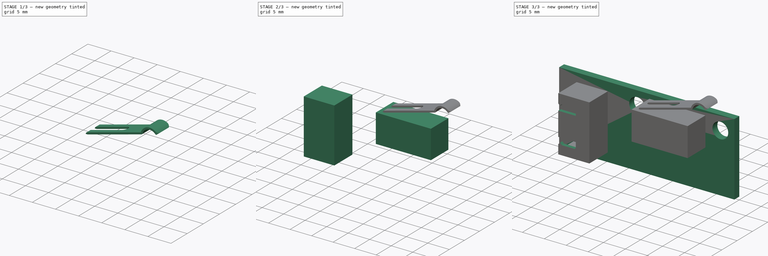
[diagram: build sequence overview — one tinted view per stage of 3, left to right]
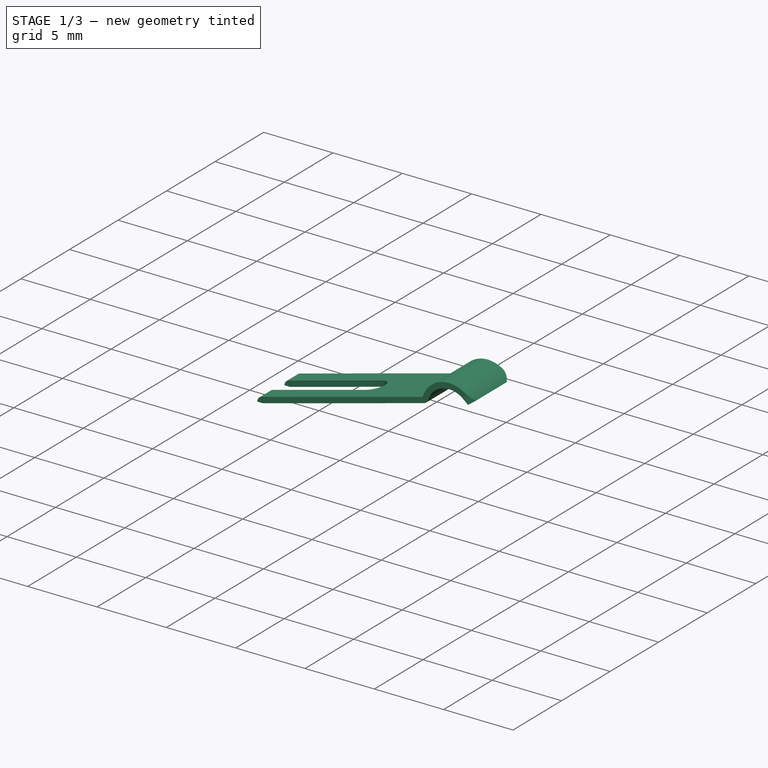
[diagram: stage 1 of 3 — iso view after this stage's code; geometry added in this stage tinted green]
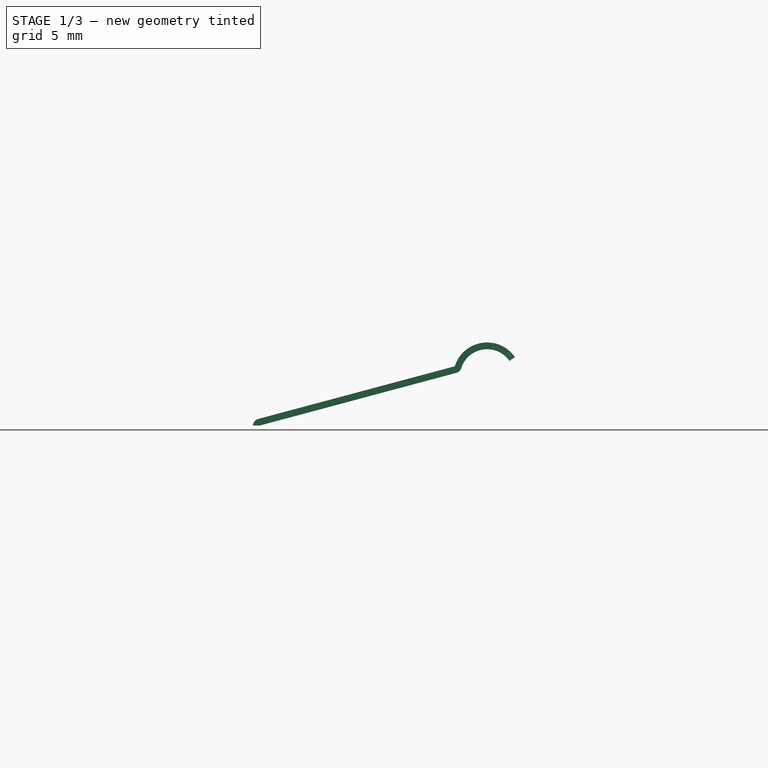
[diagram: stage 1 of 3 — front view after this stage's code; geometry added in this stage tinted green]
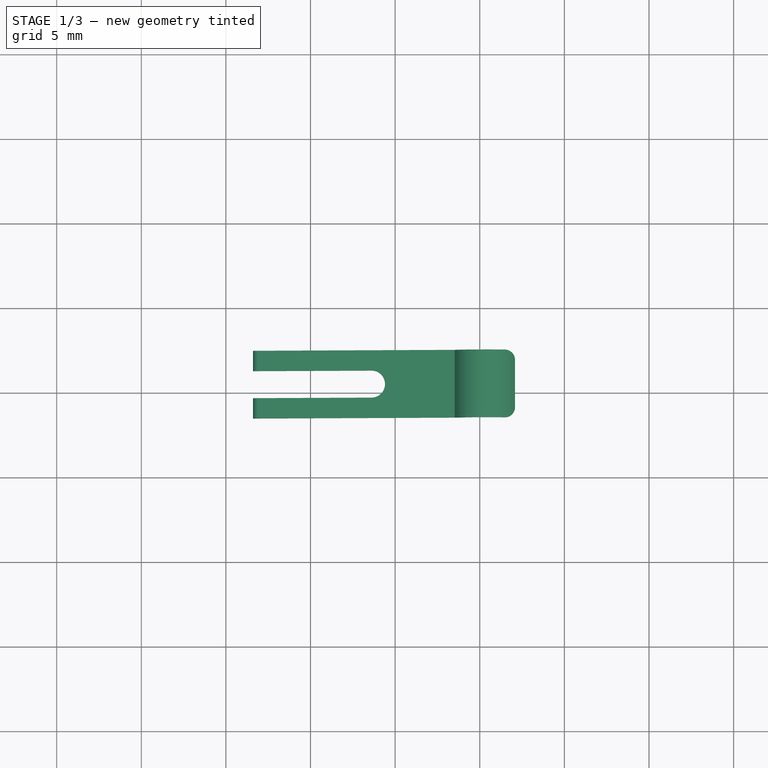
[diagram: stage 1 of 3 — top view after this stage's code; geometry added in this stage tinted green]
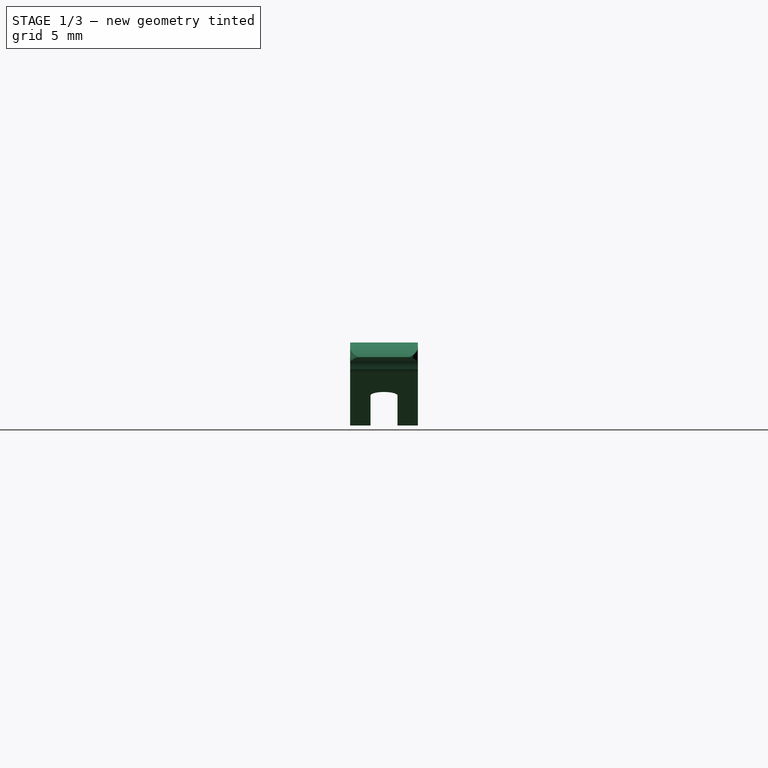
[diagram: stage 1 of 3 — right view after this stage's code; geometry added in this stage tinted green]
FCSTD DOCUMENT  (FreeCAD 0.18R4 (GitTag))
Label: Endstop
License: All rights reserved
LicenseURL: http://en.wikipedia.org/wiki/All_rights_reserved
objects: Sketcher::SketchObject×7, PartDesign::Pad×4, PartDesign::Body×4, PartDesign::ShapeBinder×4, PartDesign::Pocket×3
note: 29 computed .brp shape members not serialized (recipe doc carries the construction recipe); baked Part::Feature solids carry a one-line shape summary decoded from their .brp

FEATURE [PartDesign::Body] Body002  label="Switch"
  Group = -> [CopyPad001,Sketch004,Pad002]
  Origin = -> Origin002
  Tip = -> Pad002
FEATURE [PartDesign::ShapeBinder] CopyPad002
  Placement = pos=(0,-5.8,-1.2517e-07) rot=(0,0,1;0rad)
  TraceSupport = false
FEATURE [Sketcher::SketchObject] Sketch005
  MapMode = 5
  Placement = pos=(0,-7.4,-1.72853e-07) rot=(1,0,0;1.5708rad)
  Support = -> [CopyPad002]
  sketch-geometry (9):
    g0: LineSegment [constr] StartX=20.6 StartY=15.6 StartZ=0 EndX=33.4 EndY=15.6 EndZ=0
    g1: ArcOfCircle CenterX=22 CenterY=15.6 CenterZ=0 NormalX=0 NormalY=0 NormalZ=1 AngleXU=0 Radius=0.4 StartAngle=1.8326 EndAngle=3.14159
    g2: LineSegment StartX=21.8965 StartY=15.9864 StartZ=0 EndX=33.522 EndY=19.1014 EndZ=0
    g3: ArcOfCircle CenterX=35.4323 CenterY=18.5093 CenterZ=0 NormalX=0 NormalY=0 NormalZ=1 AngleXU=0 Radius=2 StartAngle=0.601485 EndAngle=2.84102
    g4: ArcOfCircle CenterX=35.4323 CenterY=18.5093 CenterZ=0 NormalX=0 NormalY=0 NormalZ=1 AngleXU=0 Radius=1.6 StartAngle=0.601485 EndAngle=2.84102
    g5: ArcOfCircle CenterX=33.522 CenterY=19.1014 CenterZ=0 NormalX=0 NormalY=0 NormalZ=1 AngleXU=0 Radius=0.4 StartAngle=4.97419 EndAngle=5.98262
    g6: LineSegment StartX=33.6255 StartY=18.715 StartZ=0 EndX=22 EndY=15.6 EndZ=0
    g7: LineSegment StartX=22 StartY=15.6 StartZ=0 EndX=21.6 EndY=15.6 EndZ=0
    g8: LineSegment StartX=37.0813 StartY=19.641 StartZ=0 EndX=36.7515 EndY=19.4147 EndZ=0
  constraints (26):
    c: Horizontal(g0)
    c: DistanceX(g-1,g0) = 20.6
    c: DistanceY(g-1,g0) = 15.6
    c: Distance(g0) = 12.8
    c: PointOnObject(g1,g0)
    c: Coincident(g3,g2)
    c: Coincident(g4,g3)
    c: Coincident(g5,g2)
    c: Coincident(g7,g1)
    c: Tangent(g2,g1) = 1.5708
    c: Tangent(g5,g4) = 1.5708
    c: PointOnObject(g1,g0)
    c: Coincident(g6,g7)
    c: Parallel(g2,g6)
    c: Tangent(g5,g6) = 1.5708
    c: Coincident(g1,g6)
    c: Distance(g1,g3) = 16
    c: Angle(g0,g6) = 0.261799
    c: Distance(g0,g1) = 1
    c: PointOnObject(g3,g6)
    c: Coincident(g8,g3)
    c: Coincident(g8,g4)
    c: PointOnObject(g3,g8)
    c: Distance(g2,g5) = 0.4
    c: Distance(g2,g3) = 3.6
    c: Diameter(g4) = 3.2
FEATURE [PartDesign::Pad] Pad003
  Length = 5.8
  Length2 = 100
  Placement = pos=(0,-5.8,-1.2517e-07) rot=(0,0,1;0rad)
  Profile = -> Sketch005
  Reversed = true
  Type = 0
FEATURE [PartDesign::ShapeBinder] CopyPad002001
  Placement = pos=(0,-1.6,1.1e-15) rot=(0,0,1;0rad)
  TraceSupport = false
FEATURE [Sketcher::SketchObject] Sketch006
  ExternalGeometry = -> [Pad003]
  MapMode = 5
  Placement = pos=(0,-1.6,15.6) rot=(1,0,0;0rad)
  Support = -> [CopyPad002001]
  sketch-geometry (15):
    g0: LineSegment StartX=21.6 StartY=-4.9 StartZ=0 EndX=36.4813 EndY=-4.9 EndZ=0
    g1: LineSegment StartX=20.4 StartY=-5.8 StartZ=0 EndX=20.4 EndY=0 EndZ=0
    g2: LineSegment StartX=20.4 StartY=0 StartZ=0 EndX=37.0813 EndY=8.9e-15 EndZ=0
    g3: LineSegment StartX=36.4813 StartY=-0.9 StartZ=0 EndX=21.6 EndY=-0.9 EndZ=0
    g4: LineSegment StartX=21.6 StartY=-0.9 StartZ=0 EndX=21.6 EndY=-2.1 EndZ=0
    g5: LineSegment StartX=21.6 StartY=-2.1 StartZ=0 EndX=28.6 EndY=-2.1 EndZ=0
    g6: LineSegment StartX=21.6 StartY=-4.9 StartZ=0 EndX=21.6 EndY=-3.7 EndZ=0
    g7: LineSegment StartX=21.6 StartY=-3.7 StartZ=0 EndX=28.6 EndY=-3.7 EndZ=0
    g8: LineSegment StartX=37.0813 StartY=-5.8 StartZ=0 EndX=21.6 EndY=-5.8 EndZ=0
    g9: LineSegment StartX=21.6 StartY=-5.8 StartZ=0 EndX=20.4 EndY=-5.8 EndZ=0
    g10: ArcOfCircle CenterX=28.6 CenterY=-2.9 CenterZ=0 NormalX=0 NormalY=0 NormalZ=1 AngleXU=0 Radius=0.8 StartAngle=4.71239 EndAngle=7.85398
    g11: ArcOfCircle CenterX=36.4813 CenterY=-4.3 CenterZ=0 NormalX=0 NormalY=0 NormalZ=1 AngleXU=0 Radius=0.6 StartAngle=4.71239 EndAngle=6.28319
    g12: ArcOfCircle CenterX=36.4813 CenterY=-1.5 CenterZ=0 NormalX=0 NormalY=0 NormalZ=1 AngleXU=0 Radius=0.6 StartAngle=0 EndAngle=1.5708
    g13: LineSegment StartX=37.0813 StartY=-1.5 StartZ=0 EndX=37.0813 EndY=8.9e-15 EndZ=0
    g14: LineSegment StartX=37.0813 StartY=-4.3 StartZ=0 EndX=37.0813 EndY=-5.8 EndZ=0
  constraints (45):
    c: PointOnObject(g0,g-3)
    c: Horizontal(g0)
    c: PointOnObject(g1,g-1)
    c: Vertical(g1)
    c: Coincident(g1,g2)
    c: Coincident(g2,g-4)
    c: PointOnObject(g3,g-3)
    c: Horizontal(g3)
    c: Coincident(g3,g4)
    c: PointOnObject(g4,g-3)
    c: Coincident(g4,g5)
    c: Horizontal(g5)
    c: Coincident(g0,g6)
    c: PointOnObject(g6,g-3)
    c: Coincident(g6,g7)
    c: Horizontal(g7)
    c: Equal(g4,g6)
    c: Vertical(g7,g5)
    c: Coincident(g8,g-3)
    c: Coincident(g9,g8)
    c: Coincident(g9,g1)
    c: Horizontal(g9)
    c: Equal(g9,g6)
    c: Coincident(g10,g5)
    c: Coincident(g10,g7)
    c: Distance(g3,g0) = 4
    c: Distance(g4) = 1.2
    c: Distance(g7) = 7
    c: Vertical(g10,g5)
    c: Coincident(g11,g0)
    c: PointOnObject(g11,g-4)
    c: Coincident(g12,g3)
    c: PointOnObject(g12,g-4)
    c: Vertical(g3,g12)
    c: Vertical(g12,g11)
    c: Vertical(g11,g0)
    c: Horizontal(g12,g12)
    c: Horizontal(g11,g11)
    c: Coincident(g13,g12)
    c: Coincident(g13,g2)
    c: Coincident(g14,g11)
    c: Coincident(g14,g8)
    c: Equal(g13,g14)
    c: Coincident(g8,g-4)
    c: Radius(g11) = 0.6
FEATURE [PartDesign::Pocket] Pocket002
  BaseFeature = -> Pad003
  Length = 5
  Length2 = 100
  Placement = pos=(0,-5.8,-1.2517e-07) rot=(0,0,1;0rad)
  Profile = -> Sketch006
  Reversed = true
  Type = 1
FEATURE [PartDesign::Body] Body003  label="Lever"
  Group = -> [CopyPad002,Sketch005,Pad003,CopyPad002001,Sketch006,Pocket002]
  Origin = -> Origin003
  Tip = -> Pocket002
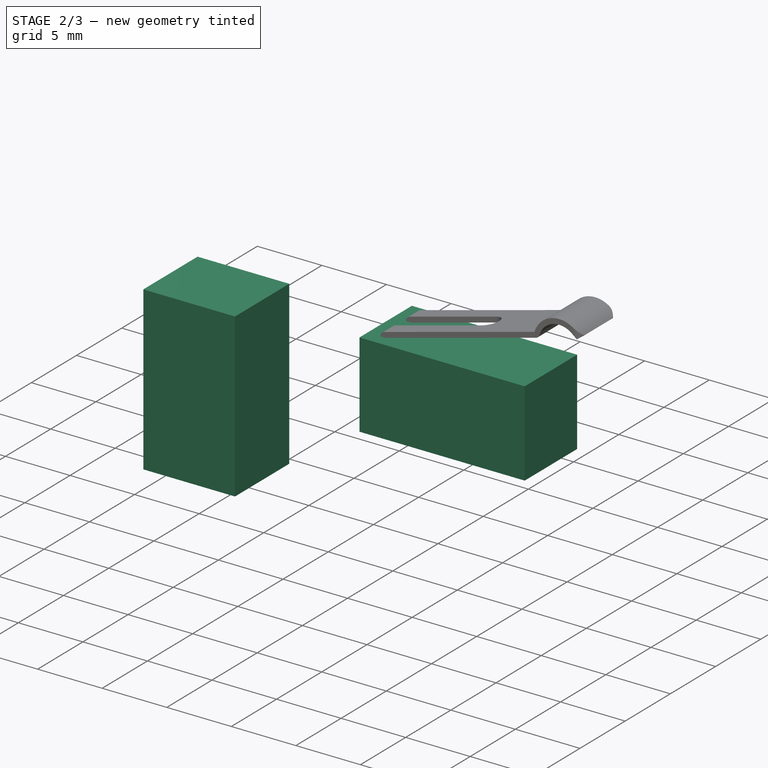
[diagram: stage 2 of 3 — iso view after this stage's code; geometry added in this stage tinted green]
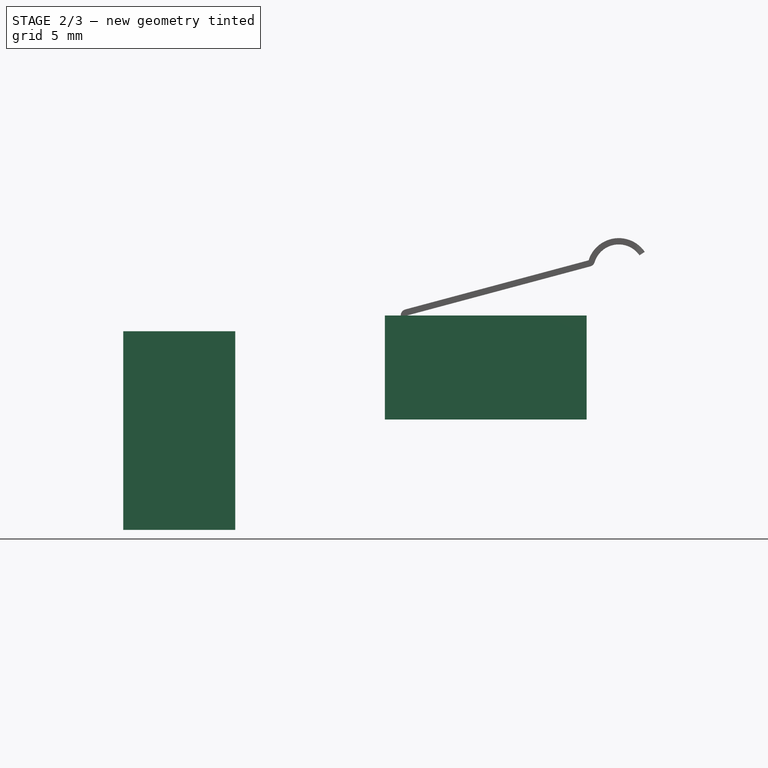
[diagram: stage 2 of 3 — front view after this stage's code; geometry added in this stage tinted green]
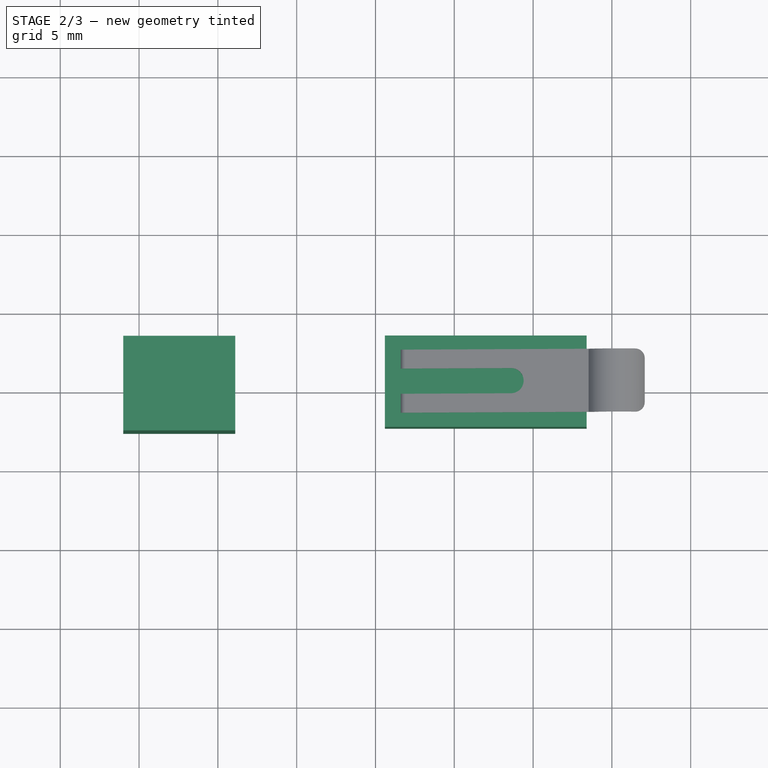
[diagram: stage 2 of 3 — top view after this stage's code; geometry added in this stage tinted green]
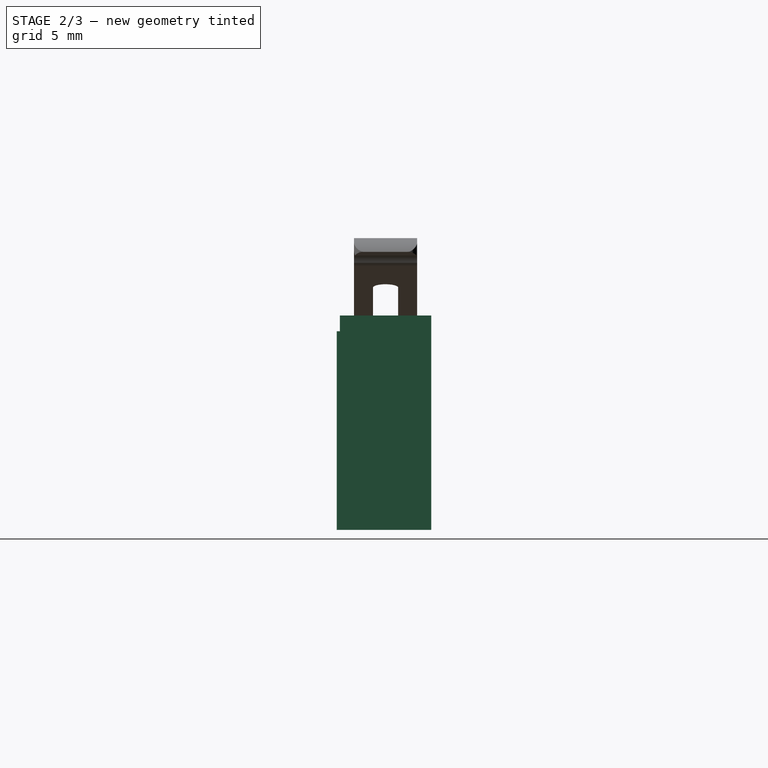
[diagram: stage 2 of 3 — right view after this stage's code; geometry added in this stage tinted green]
FEATURE [PartDesign::Body] Body  label="PCB"
  Group = -> [Sketch,Pad]
  Origin = -> Origin
  Tip = -> Pad
FEATURE [PartDesign::ShapeBinder] CopyPad
  Placement = pos=(0,-1.6,1e-15) rot=(0,0,1;0rad)
  TraceSupport = false
FEATURE [Sketcher::SketchObject] Sketch001
  MapMode = 5
  Placement = pos=(0,-1.6,1e-15) rot=(1,0,0;1.5708rad)
  Support = -> [CopyPad]
  sketch-geometry (4):
    g0: LineSegment StartX=4 StartY=2 StartZ=0 EndX=11.1 EndY=2 EndZ=0
    g1: LineSegment StartX=11.1 StartY=2 StartZ=0 EndX=11.1 EndY=14.6 EndZ=0
    g2: LineSegment StartX=11.1 StartY=14.6 StartZ=0 EndX=4 EndY=14.6 EndZ=0
    g3: LineSegment StartX=4 StartY=14.6 StartZ=0 EndX=4 EndY=2 EndZ=0
  constraints (12):
    c: Coincident(g0,g1)
    c: Coincident(g1,g2)
    c: Coincident(g2,g3)
    c: Coincident(g3,g0)
    c: Horizontal(g0)
    c: Horizontal(g2)
    c: Vertical(g1)
    c: Vertical(g3)
    c: DistanceY(g-1,g0) = 2
    c: Distance(g1) = 12.6
    c: Distance(g0) = 7.1
    c: DistanceX(g-1,g0) = 4
FEATURE [PartDesign::Pad] Pad001
  Length = 6
  Length2 = 100
  Placement = pos=(0,-1.6,1e-15) rot=(0,0,1;0rad)
  Profile = -> Sketch001
  Type = 0
FEATURE [Sketcher::SketchObject] Sketch002
  ExternalGeometry = -> [Pad001]
  MapMode = 5
  Placement = pos=(4,-1.6,1e-15) rot=(0.57735,-0.57735,-0.57735;2.0944rad)
  Support = -> [Pad001]
  sketch-geometry (4):
    g0: LineSegment StartX=0.8 StartY=13.8 StartZ=0 EndX=5.2 EndY=13.8 EndZ=0
    g1: LineSegment StartX=5.2 StartY=13.8 StartZ=0 EndX=5.2 EndY=2.8 EndZ=0
    g2: LineSegment StartX=5.2 StartY=2.8 StartZ=0 EndX=0.8 EndY=2.8 EndZ=0
    g3: LineSegment StartX=0.8 StartY=2.8 StartZ=0 EndX=0.8 EndY=13.8 EndZ=0
  constraints (12):
    c: Coincident(g0,g1)
    c: Coincident(g1,g2)
    c: Coincident(g2,g3)
    c: Coincident(g3,g0)
    c: Horizontal(g0)
    c: Horizontal(g2)
    c: Vertical(g1)
    c: Vertical(g3)
    c: DistanceY(g0,g-3) = 0.8
    c: DistanceY(g-4,g2) = 0.8
    c: DistanceX(g-4,g2) = 0.8
    c: DistanceX(g1,g-4) = 0.8
FEATURE [PartDesign::Pocket] Pocket
  BaseFeature = -> Pad001
  Length = 6.3
  Length2 = 100
  Placement = pos=(0,-1.6,1e-15) rot=(0,0,1;0rad)
  Profile = -> Sketch002
  Type = 0
FEATURE [PartDesign::Body] Body001  label="Connector"
  Group = -> [CopyPad,Sketch001,Pad001,Sketch002,Pocket,Sketch003,Pocket001]
  Origin = -> Origin001
  Tip = -> Pocket001
FEATURE [PartDesign::ShapeBinder] CopyPad001
  Placement = pos=(0,-1.6,1e-15) rot=(0,0,1;0rad)
  TraceSupport = false
FEATURE [Sketcher::SketchObject] Sketch004
  MapMode = 5
  Placement = pos=(0,-1.6,1e-15) rot=(1,0,0;1.5708rad)
  Support = -> [CopyPad001]
  sketch-geometry (4):
    g0: LineSegment StartX=20.6 StartY=15.6 StartZ=0 EndX=33.4 EndY=15.6 EndZ=0
    g1: LineSegment StartX=33.4 StartY=15.6 StartZ=0 EndX=33.4 EndY=9 EndZ=0
    g2: LineSegment StartX=33.4 StartY=9 StartZ=0 EndX=20.6 EndY=9 EndZ=0
    g3: LineSegment StartX=20.6 StartY=9 StartZ=0 EndX=20.6 EndY=15.6 EndZ=0
  constraints (12):
    c: Coincident(g0,g1)
    c: Coincident(g1,g2)
    c: Coincident(g2,g3)
    c: Coincident(g3,g0)
    c: Horizontal(g0)
    c: Horizontal(g2)
    c: Vertical(g1)
    c: Vertical(g3)
    c: Distance(g1) = 6.6
    c: Distance(g2) = 12.8
    c: DistanceY(g-1,g2) = 9
    c: DistanceX(g-1,g2) = 20.6
FEATURE [PartDesign::Pad] Pad002
  Length = 5.8
  Length2 = 100
  Placement = pos=(0,-1.6,1e-15) rot=(0,0,1;0rad)
  Profile = -> Sketch004
  Type = 0
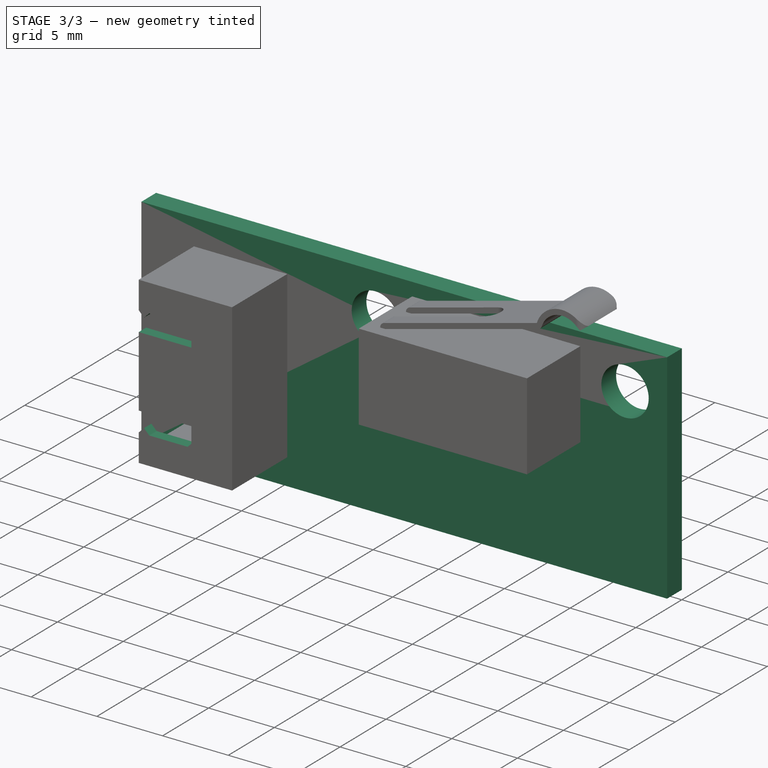
[diagram: stage 3 of 3 — iso view after this stage's code; geometry added in this stage tinted green]
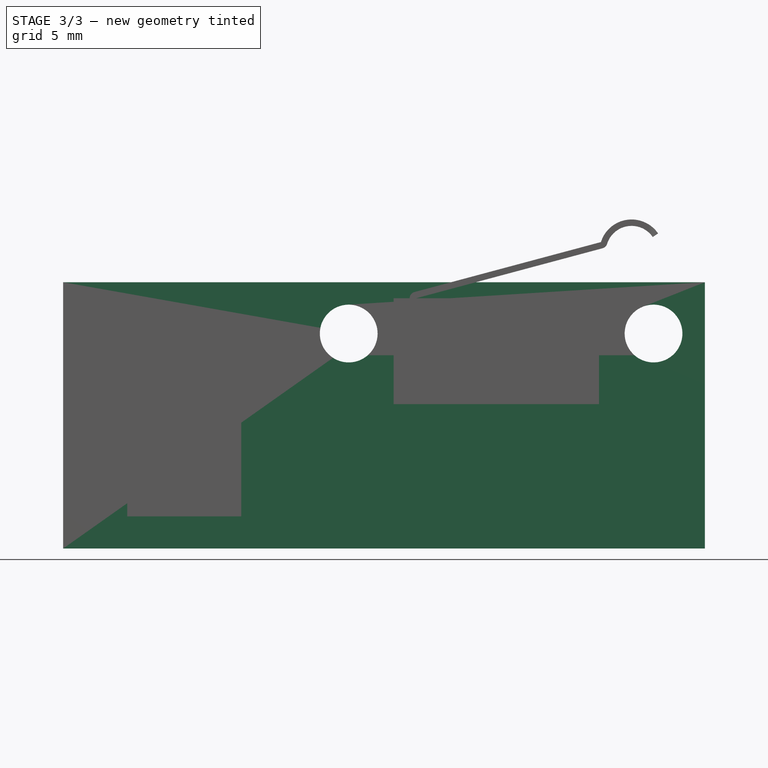
[diagram: stage 3 of 3 — front view after this stage's code; geometry added in this stage tinted green]
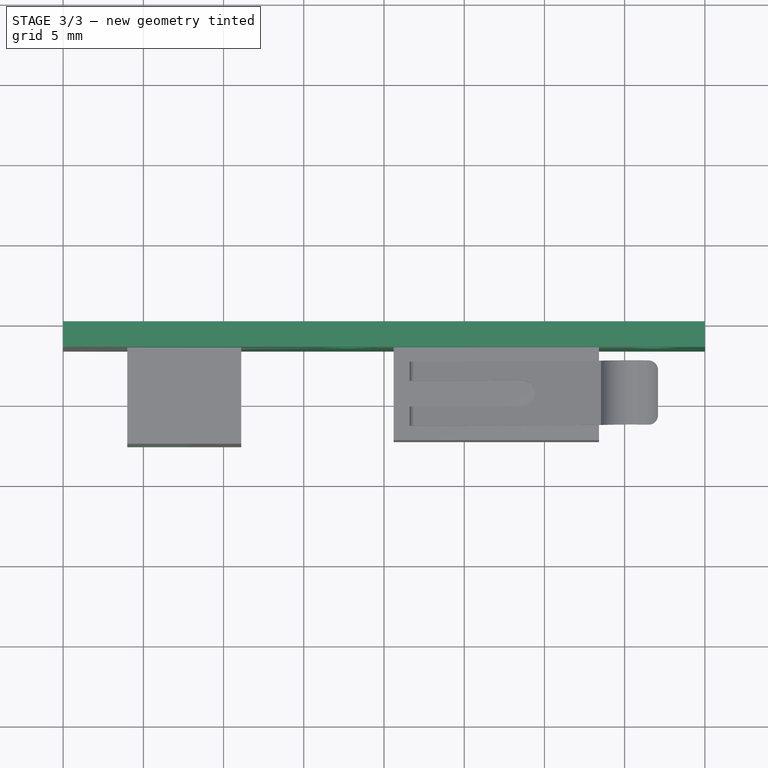
[diagram: stage 3 of 3 — top view after this stage's code; geometry added in this stage tinted green]
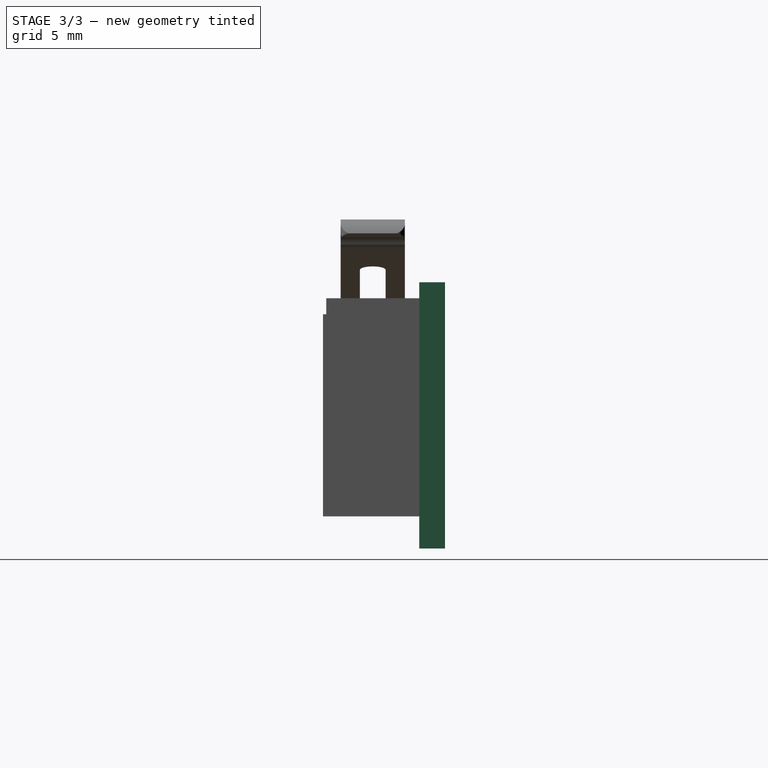
[diagram: stage 3 of 3 — right view after this stage's code; geometry added in this stage tinted green]
FEATURE [Sketcher::SketchObject] Sketch  label="Sketch PCB"
  MapMode = 5
  Placement = pos=(0,0,0) rot=(1,0,0;1.5708rad)
  Support = -> [XZ_Plane]
  sketch-geometry (6):
    g0: LineSegment StartX=0 StartY=0 StartZ=0 EndX=40 EndY=0 EndZ=0
    g1: LineSegment StartX=40 StartY=0 StartZ=0 EndX=40 EndY=16.6 EndZ=0
    g2: LineSegment StartX=40 StartY=16.6 StartZ=0 EndX=0 EndY=16.6 EndZ=0
    g3: LineSegment StartX=0 StartY=16.6 StartZ=0 EndX=0 EndY=0 EndZ=0
    g4: Circle CenterX=36.8 CenterY=13.4 CenterZ=0 NormalX=0 NormalY=0 NormalZ=1 AngleXU=0 Radius=1.8
    g5: Circle CenterX=17.8 CenterY=13.4 CenterZ=0 NormalX=0 NormalY=0 NormalZ=1 AngleXU=0 Radius=1.8
  constraints (17):
    c: Coincident(g0,g1)
    c: Coincident(g1,g2)
    c: Coincident(g2,g3)
    c: Coincident(g3,g0)
    c: Horizontal(g0)
    c: Horizontal(g2)
    c: Vertical(g1)
    c: Vertical(g3)
    c: Coincident(g0,g-1)
    c: Distance(g0) = 40
    c: Distance(g1) = 16.6
    c: Equal(g5,g4)
    c: Horizontal(g5,g4)
    c: DistanceX(g5,g4) = 19
    c: Diameter(g5) = 3.6
    c: Distance(g4,g2) = 3.2
    c: Distance(g4,g1) = 3.2
FEATURE [PartDesign::Pad] Pad  label="Pad PCB"
  Length = 1.6
  Length2 = 100
  Placement = pos=(0,0,0) rot=(1,0,0;1.5708rad)
  Profile = -> Sketch
  Type = 0
FEATURE [Sketcher::SketchObject] Sketch003
  ExternalGeometry = -> [Pocket]
  MapMode = 5
  Placement = pos=(0,-7.6,-3.57628e-07) rot=(1,0,0;1.5708rad)
  Support = -> [Pocket]
  sketch-geometry (15):
    g0: LineSegment StartX=4 StartY=5.6 StartZ=0 EndX=8 EndY=5.6 EndZ=0
    g1: LineSegment StartX=8 StartY=5.6 StartZ=0 EndX=8 EndY=4.38284 EndZ=0
    g2: LineSegment StartX=8 StartY=4.38284 StartZ=0 EndX=7.71716 EndY=4.1 EndZ=0
    g3: LineSegment StartX=7.71716 StartY=4.1 StartZ=0 EndX=4.8 EndY=4.1 EndZ=0
    g4: LineSegment StartX=4.8 StartY=4.1 StartZ=0 EndX=4.4 EndY=4.5 EndZ=0
    g5: LineSegment StartX=4.4 StartY=4.5 StartZ=0 EndX=4 EndY=4.1 EndZ=0
    g6: LineSegment StartX=4 StartY=4.1 StartZ=0 EndX=4 EndY=5.6 EndZ=0
    g7: LineSegment [constr] StartX=4 StartY=8.3 StartZ=0 EndX=16.6 EndY=8.3 EndZ=0
    g8: LineSegment StartX=4 StartY=11 StartZ=0 EndX=8 EndY=11 EndZ=0
    g9: LineSegment StartX=8 StartY=11 StartZ=0 EndX=8 EndY=12.2172 EndZ=0
    g10: LineSegment StartX=8 StartY=12.2172 StartZ=0 EndX=7.71716 EndY=12.5 EndZ=0
    g11: LineSegment StartX=7.71716 StartY=12.5 StartZ=0 EndX=4.8 EndY=12.5 EndZ=0
    g12: LineSegment StartX=4.8 StartY=12.5 StartZ=0 EndX=4.4 EndY=12.1 EndZ=0
    g13: LineSegment StartX=4.4 StartY=12.1 StartZ=0 EndX=4 EndY=12.5 EndZ=0
    g14: LineSegment StartX=4 StartY=12.5 StartZ=0 EndX=4 EndY=11 EndZ=0
  constraints (44):
    c: PointOnObject(g0,g-3)
    c: Horizontal(g0)
    c: Coincident(g0,g1)
    c: Vertical(g1)
    c: Coincident(g1,g2)
    c: Coincident(g2,g3)
    c: Horizontal(g3)
    c: Coincident(g3,g4)
    c: Coincident(g4,g5)
    c: PointOnObject(g5,g-3)
    c: Coincident(g5,g6)
    c: Coincident(g6,g0)
    c: Equal(g5,g4)
    c: Horizontal(g5,g3)
    c: Angle(g2,g3) = 2.35619
    c: Distance(g2) = 0.4
    c: Distance(g0) = 4
    c: Distance(g2,g0) = 1.5
    c: DistanceY(g3,g4) = 0.4
    c: Distance(g5,g3) = 0.8
    c: PointOnObject(g7,g-3)
    c: Equal(g7,g-3)
    c: Symmetric(g-3,g-3,g7)
    c: Horizontal(g8)
    c: Coincident(g8,g9)
    c: Vertical(g9)
    c: Coincident(g9,g10)
    c: Coincident(g10,g11)
    c: Horizontal(g11)
    c: Coincident(g11,g12)
    c: Coincident(g12,g13)
    c: Coincident(g13,g14)
    c: Coincident(g14,g8)
    c: Equal(g13,g12)
    c: Angle(g10,g11) = -2.35619
    c: Distance(g10) = 0.4
    c: Distance(g8) = 4
    c: Distance(g10,g8) = 1.5
    c: Distance(g13,g11) = 0.8
    c: PointOnObject(g13,g-3)
    c: Horizontal(g13,g11)
    c: DistanceY(g12,g11) = 0.4
    c: Symmetric(g0,g8,g7)
    c: Distance(g8,g0) = 5.4
FEATURE [PartDesign::Pocket] Pocket001
  BaseFeature = -> Pocket
  Length = 1
  Length2 = 100
  Placement = pos=(0,-1.6,1e-15) rot=(0,0,1;0rad)
  Profile = -> Sketch003
  Type = 0
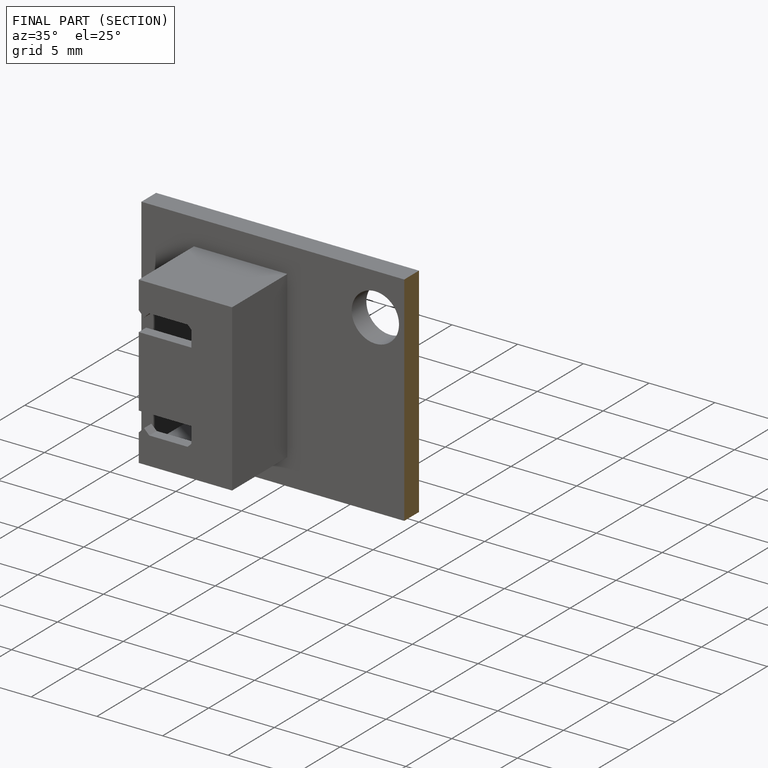
[diagram: finished part — half-section view (interior)]
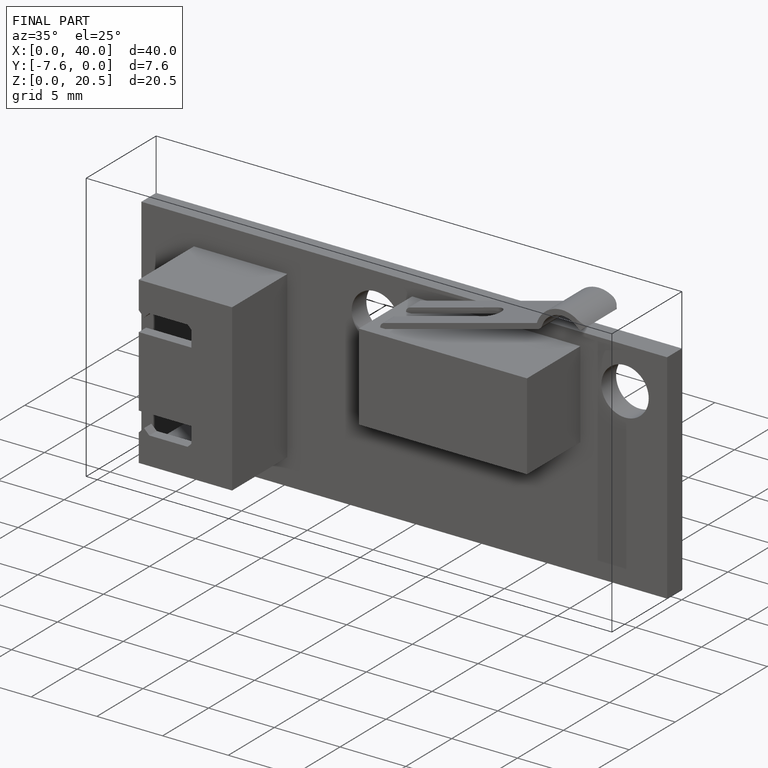
[diagram: finished part — iso view with bounding-box wireframe]
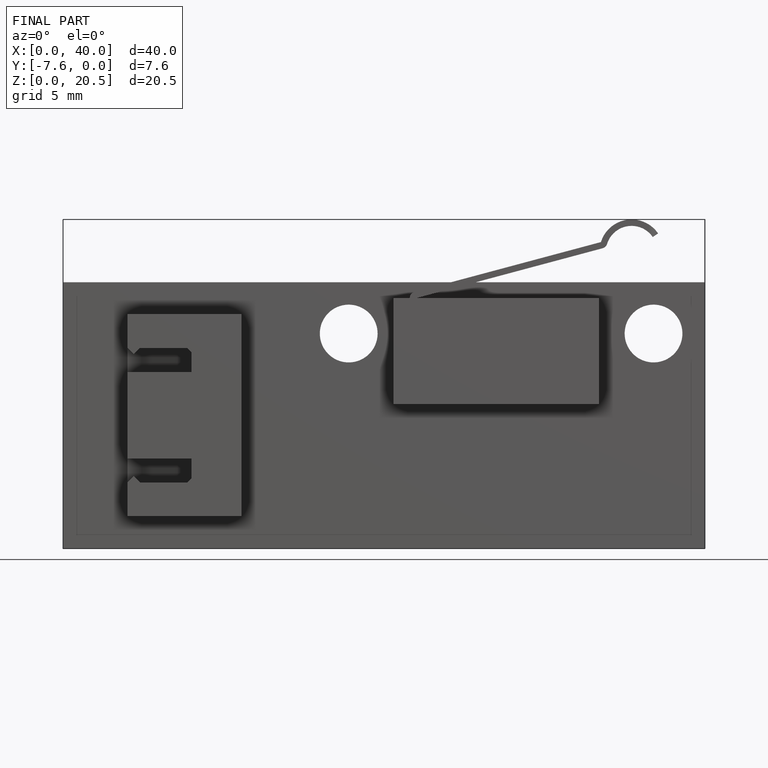
[diagram: finished part — front view with bounding-box wireframe]
